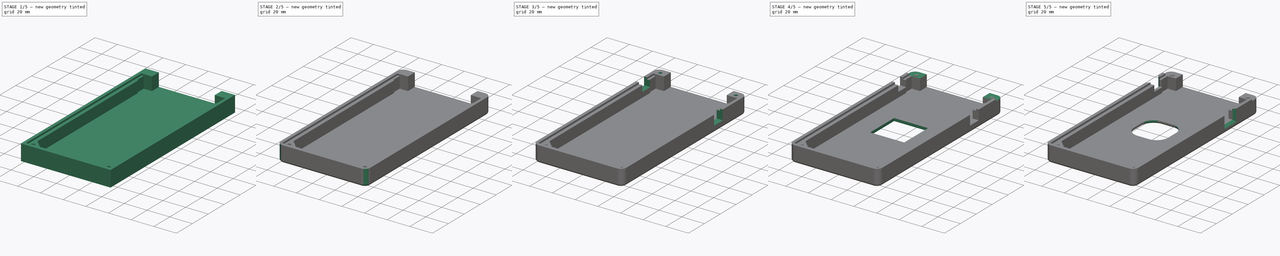
[diagram: build sequence overview — one tinted view per stage of 5, left to right]
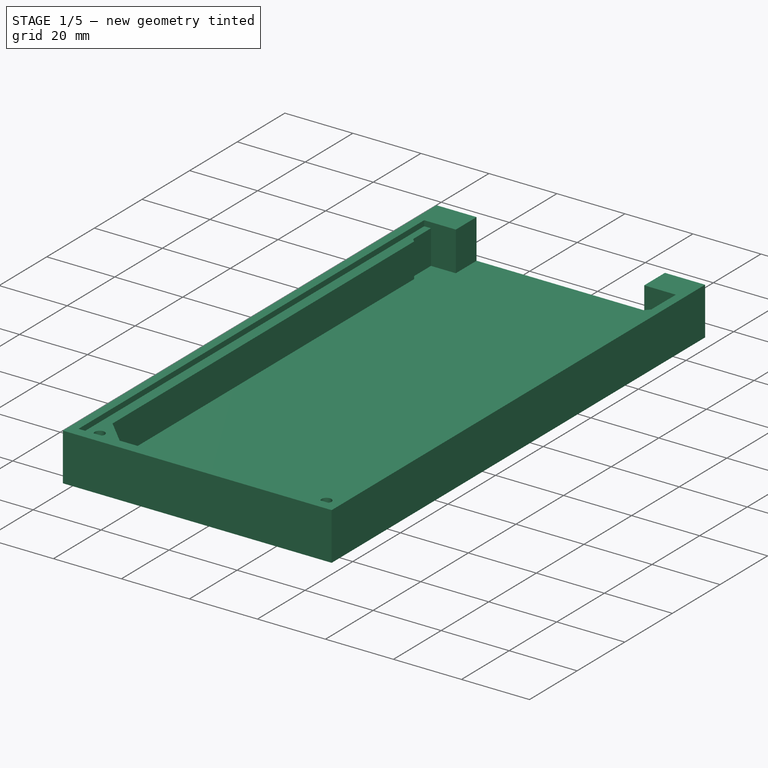
[diagram: stage 1 of 5 — iso view after this stage's code; geometry added in this stage tinted green]
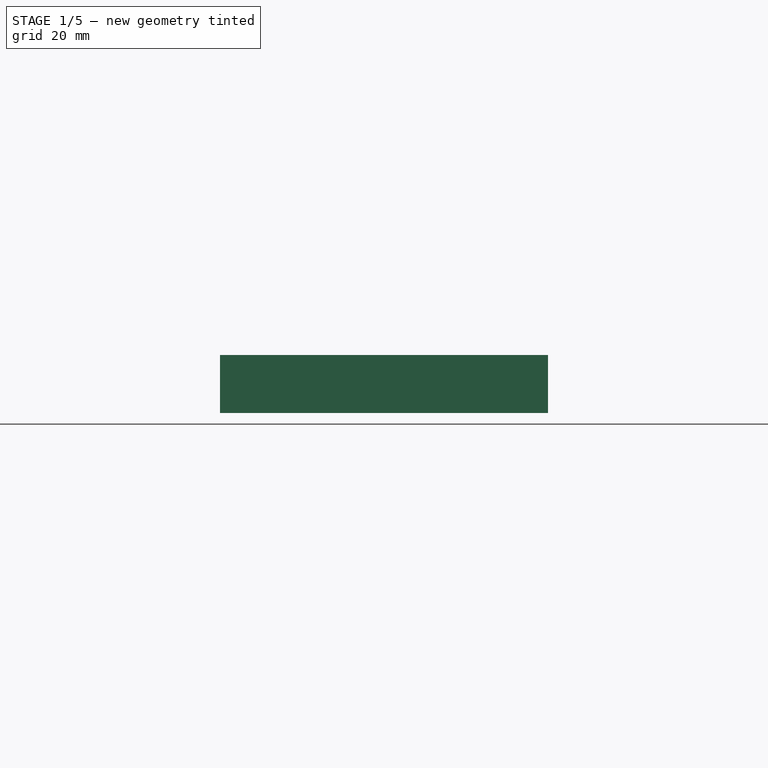
[diagram: stage 1 of 5 — front view after this stage's code; geometry added in this stage tinted green]
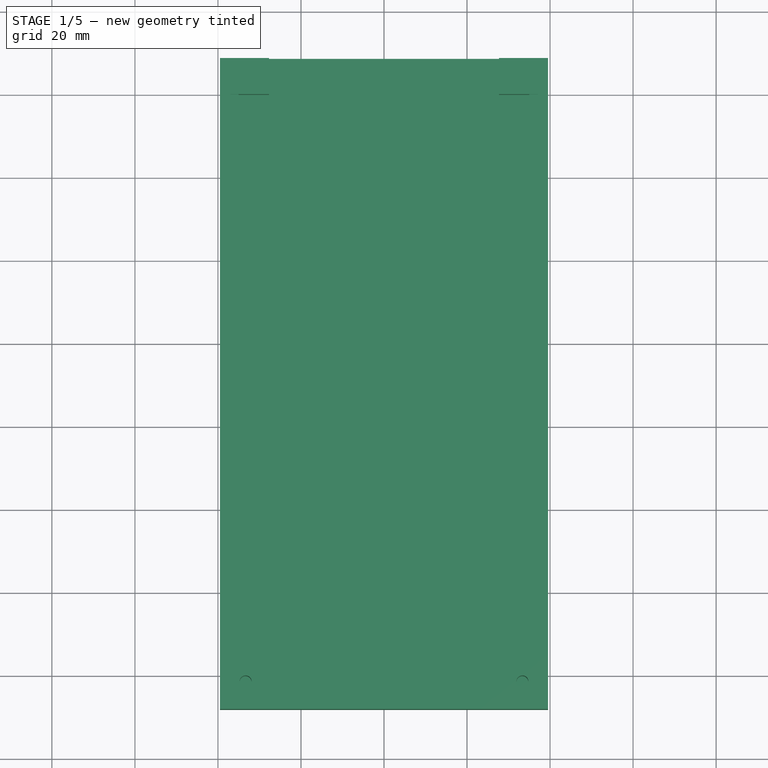
[diagram: stage 1 of 5 — top view after this stage's code; geometry added in this stage tinted green]
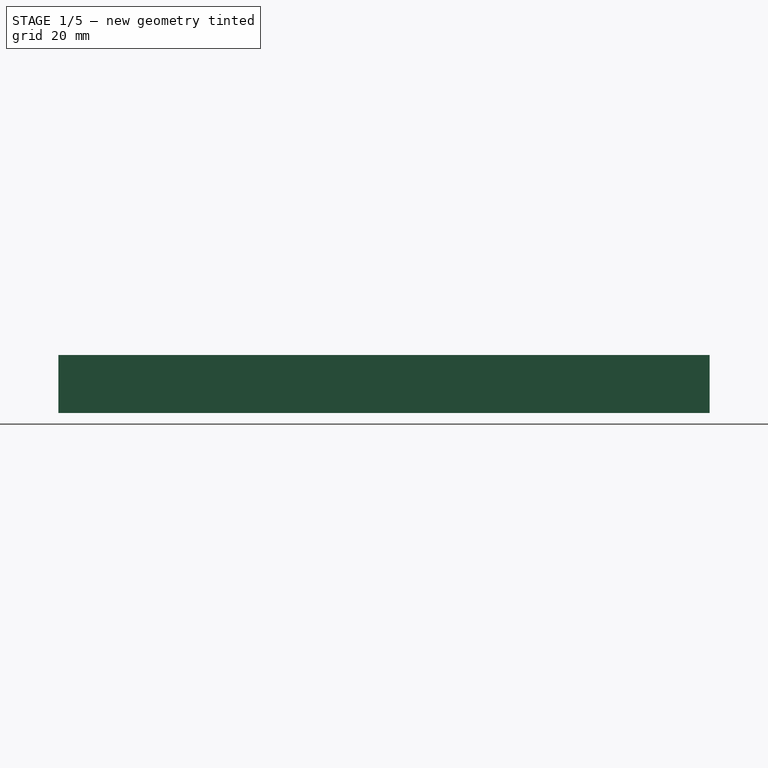
[diagram: stage 1 of 5 — right view after this stage's code; geometry added in this stage tinted green]
FCSTD DOCUMENT  (FreeCAD 0.19R)
Label: pocket265-dev2
License: All rights reserved
LicenseURL: http://en.wikipedia.org/wiki/All_rights_reserved
objects: Sketcher::SketchObject×9, PartDesign::Pocket×7, PartDesign::Chamfer×6, PartDesign::Fillet×3, PartDesign::Pad×2, PartDesign::Body×1
note: 46 computed .brp shape members not serialized (recipe doc carries the construction recipe); baked Part::Feature solids carry a one-line shape summary decoded from their .brp

FEATURE [Sketcher::SketchObject] Sketch
  FullyConstrained = true
  MapMode = 5
  Support = -> [XY_Plane]
  sketch-geometry (4):
    g0: LineSegment StartX=-39.515 StartY=8.7 StartZ=0 EndX=39.515 EndY=8.7 EndZ=0
    g1: LineSegment StartX=39.515 StartY=8.7 StartZ=0 EndX=39.515 EndY=-148.15 EndZ=0
    g2: LineSegment StartX=39.515 StartY=-148.15 StartZ=0 EndX=-39.515 EndY=-148.15 EndZ=0
    g3: LineSegment StartX=-39.515 StartY=-148.15 StartZ=0 EndX=-39.515 EndY=8.7 EndZ=0
  constraints (11):
    c: Coincident(g0,g1)
    c: Coincident(g1,g2)
    c: Coincident(g2,g3)
    c: Coincident(g3,g0)
    c: Horizontal(g2)
    c: Vertical(g1)
    c: Vertical(g3)
    c: Symmetric(g0,g0,g-2)
    c: DistanceX(g0,g0) = 79.03
    c: DistanceY(g-1,g0) = 8.7
    c: DistanceY(g1,g-1) = 148.15
FEATURE [PartDesign::Pad] Pad
  Direction = (1,1,1)
  Length = 14
  Length2 = 100
  Profile = -> Sketch
  Type = 0
FEATURE [Sketcher::SketchObject] Sketch001
  ExternalGeometry = -> [Pad]
  FullyConstrained = true
  MapMode = 5
  Placement = pos=(0,0,14) rot=(0,0,1;0rad)
  Support = -> [Pad]
  sketch-geometry (8):
    g0: LineSegment StartX=-37.015 StartY=-145.15 StartZ=0 EndX=37.015 EndY=-145.15 EndZ=0
    g1: LineSegment StartX=37.015 StartY=-145.15 StartZ=0 EndX=37.015 EndY=0 EndZ=0
    g2: LineSegment StartX=-37.015 StartY=0 StartZ=0 EndX=-37.015 EndY=-145.15 EndZ=0
    g3: LineSegment StartX=-37.015 StartY=0 StartZ=0 EndX=-27.7 EndY=0 EndZ=0
    g4: LineSegment StartX=-27.7 StartY=0 StartZ=0 EndX=-27.7 EndY=8.7 EndZ=0
    g5: LineSegment StartX=-27.7 StartY=8.7 StartZ=0 EndX=27.7 EndY=8.7 EndZ=0
    g6: LineSegment StartX=27.7 StartY=8.7 StartZ=0 EndX=27.7 EndY=0 EndZ=0
    g7: LineSegment StartX=27.7 StartY=0 StartZ=0 EndX=37.015 EndY=0 EndZ=0
  constraints (22):
    c: Coincident(g0,g1)
    c: Coincident(g2,g0)
    c: Vertical(g1)
    c: Vertical(g2)
    c: PointOnObject(g2,g-1)
    c: PointOnObject(g1,g-1)
    c: Symmetric(g0,g0,g-2)
    c: DistanceX(g0,g0) = 74.03
    c: DistanceY(g1,g1) = 145.15
    c: Coincident(g2,g3)
    c: PointOnObject(g3,g-1)
    c: Coincident(g3,g4)
    c: PointOnObject(g4,g-3)
    c: Vertical(g4)
    c: Coincident(g4,g5)
    c: PointOnObject(g5,g-3)
    c: Coincident(g5,g6)
    c: Vertical(g6)
    c: Coincident(g6,g7)
    c: Coincident(g7,g1)
    c: Symmetric(g6,g3,g-2)
    c: DistanceX(g5,g5) = 55.4
FEATURE [PartDesign::Pocket] Pocket
  BaseFeature = -> Pad
  Length = 11.6
  Length2 = 100
  Profile = -> Sketch001
  Type = 0
FEATURE [Sketcher::SketchObject] Sketch002
  ExternalGeometry = -> [Pocket]
  FullyConstrained = true
  MapMode = 5
  Placement = pos=(0,0,2.4) rot=(0,0,1;0rad)
  Support = -> [Pocket]
  sketch-geometry (14):
    g0: LineSegment StartX=-35.015 StartY=0 StartZ=0 EndX=-35.015 EndY=-7.5 EndZ=0
    g1: LineSegment StartX=-35.015 StartY=-7.5 StartZ=0 EndX=-34.015 EndY=-8.5 EndZ=0
    g2: LineSegment StartX=-34.015 StartY=-8.5 StartZ=0 EndX=-34.015 EndY=-135.15 EndZ=0
    g3: LineSegment StartX=-34.015 StartY=-135.15 StartZ=0 EndX=-27.015 EndY=-142.15 EndZ=0
    g4: LineSegment StartX=-27.015 StartY=-142.15 StartZ=0 EndX=27.015 EndY=-142.15 EndZ=0
    g5: LineSegment StartX=27.015 StartY=-142.15 StartZ=0 EndX=34.015 EndY=-135.15 EndZ=0
    g6: LineSegment StartX=34.015 StartY=-135.15 StartZ=0 EndX=34.015 EndY=-8.5 EndZ=0
    g7: LineSegment StartX=34.015 StartY=-8.5 StartZ=0 EndX=35.015 EndY=-7.5 EndZ=0
    g8: LineSegment StartX=35.015 StartY=-7.5 StartZ=0 EndX=35.015 EndY=0 EndZ=0
    g9: LineSegment StartX=35.015 StartY=0 StartZ=0 EndX=37.015 EndY=0 EndZ=0
    g10: LineSegment StartX=37.015 StartY=0 StartZ=0 EndX=37.015 EndY=-145.15 EndZ=0
    g11: LineSegment StartX=37.015 StartY=-145.15 StartZ=0 EndX=-37.015 EndY=-145.15 EndZ=0
    g12: LineSegment StartX=-37.015 StartY=-145.15 StartZ=0 EndX=-37.015 EndY=0 EndZ=0
    g13: LineSegment StartX=-37.015 StartY=0 StartZ=0 EndX=-35.015 EndY=0 EndZ=0
  constraints (34):
    c: PointOnObject(g0,g-3)
    c: Vertical(g0)
    c: Coincident(g0,g1)
    c: Coincident(g1,g2)
    c: Vertical(g2)
    c: Coincident(g2,g3)
    c: Coincident(g3,g4)
    c: Coincident(g4,g5)
    c: Coincident(g5,g6)
    c: Vertical(g6)
    c: Coincident(g6,g7)
    c: Coincident(g7,g8)
    c: Coincident(g8,g9)
    c: Coincident(g9,g-5)
    c: Coincident(g9,g10)
    c: Coincident(g10,g-4)
    c: Coincident(g10,g11)
    c: Coincident(g11,g-4)
    c: Coincident(g11,g12)
    c: Coincident(g12,g-3)
    c: Coincident(g12,g13)
    c: Coincident(g13,g0)
    c: Symmetric(g0,g8,g-2)
    c: DistanceX(g13,g13) = 2
    c: Symmetric(g6,g1,g-2)
    c: Symmetric(g7,g0,g-2)
    c: DistanceY(g0,g0) = 7.5
    c: Angle(g1,g0) = 2.35619
    c: DistanceX(g12,g1) = 3
    c: DistanceY(g11,g3) = 3
    c: Symmetric(g3,g4,g-2)
    c: Angle(g5,g4) = 2.35619
    c: DistanceX(g11,g3) = 10
    c: Equal(g3,g5)
FEATURE [PartDesign::Pad] Pad001
  BaseFeature = -> Pocket
  Direction = (1,1,1)
  Length = 10
  Length2 = 100
  Profile = -> Sketch002
  Type = 0
FEATURE [Sketcher::SketchObject] Sketch003
  FullyConstrained = true
  MapMode = 5
  Placement = pos=(0,0,12.4) rot=(0,0,1;0rad)
  Support = -> [Pad001]
  sketch-geometry (2):
    g0: Circle CenterX=-33.34 CenterY=-141.47 CenterZ=0 NormalX=0 NormalY=0 NormalZ=1 AngleXU=0 Radius=1.45
    g1: Circle CenterX=33.34 CenterY=-141.47 CenterZ=0 NormalX=0 NormalY=0 NormalZ=1 AngleXU=0 Radius=1.45
  constraints (5):
    c: Symmetric(g1,g0,g-2)
    c: Equal(g1,g0)
    c: Radius(g1) = 1.45
    c: DistanceX(g0,g1) = 66.68
    c: DistanceY(g0,g-1) = 141.47
FEATURE [PartDesign::Pocket] Pocket001
  BaseFeature = -> Pad001
  Length = 12
  Length2 = 100
  Profile = -> Sketch003
  Type = 0
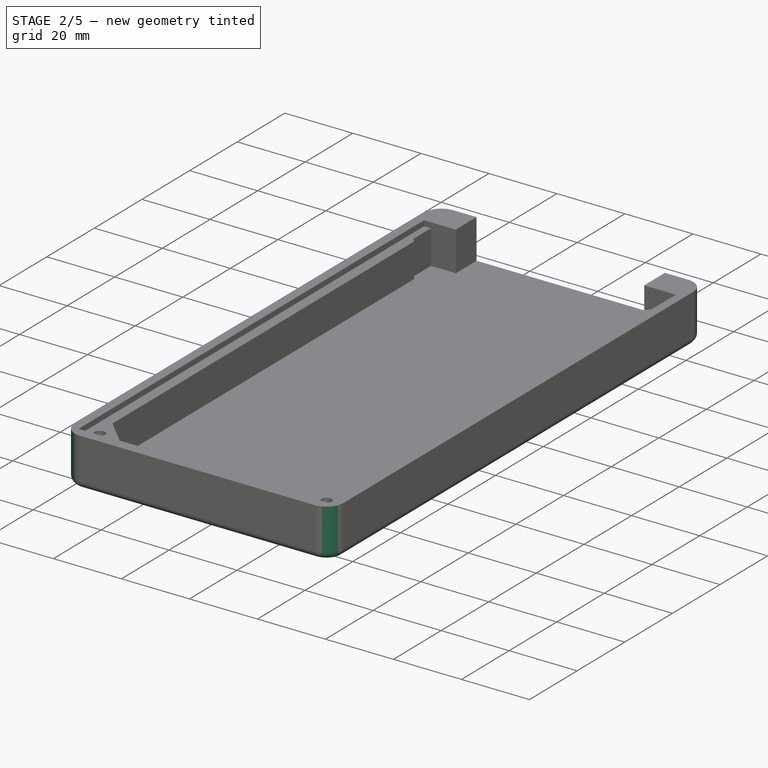
[diagram: stage 2 of 5 — iso view after this stage's code; geometry added in this stage tinted green]
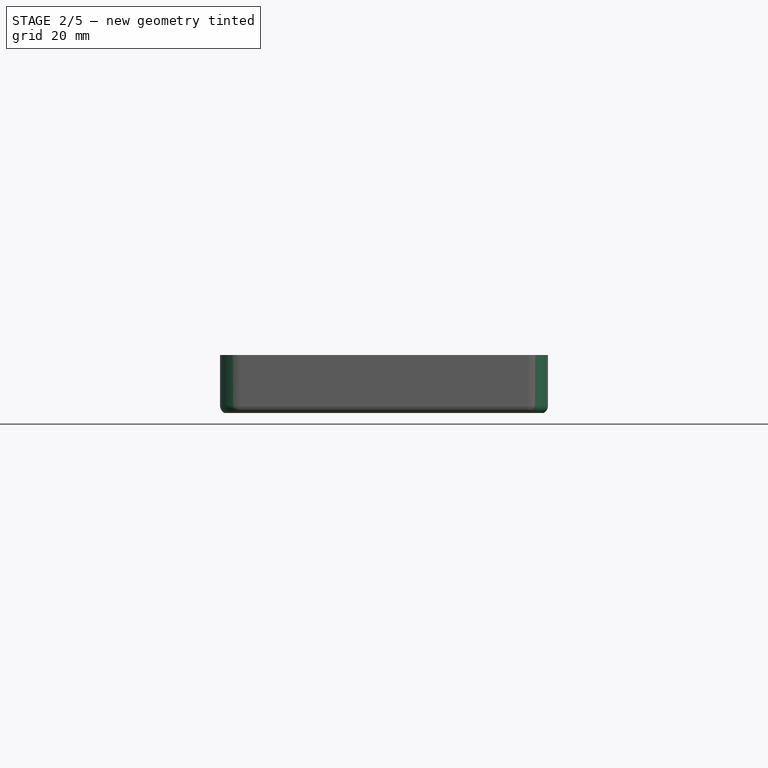
[diagram: stage 2 of 5 — front view after this stage's code; geometry added in this stage tinted green]
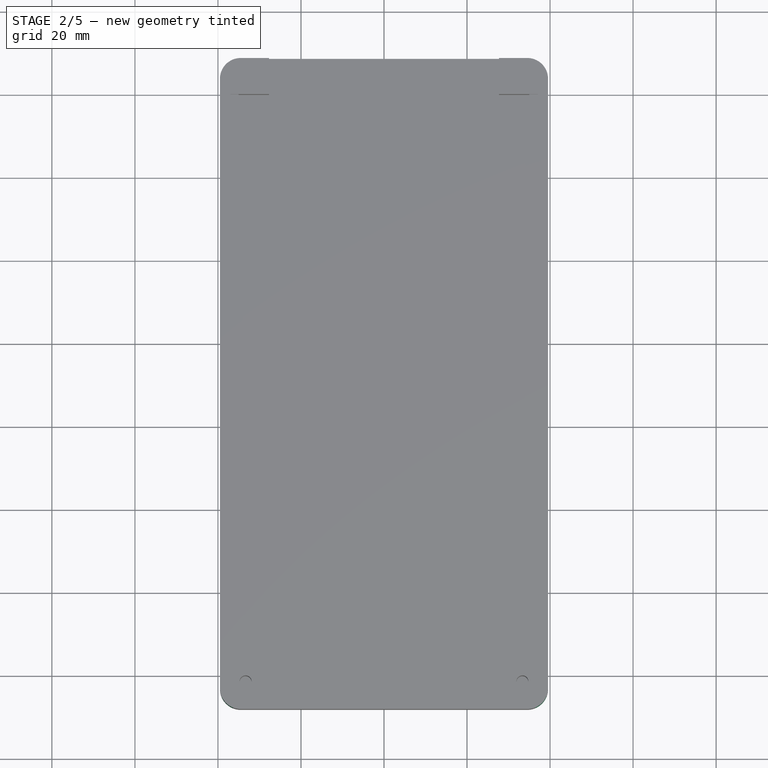
[diagram: stage 2 of 5 — top view after this stage's code; geometry added in this stage tinted green]
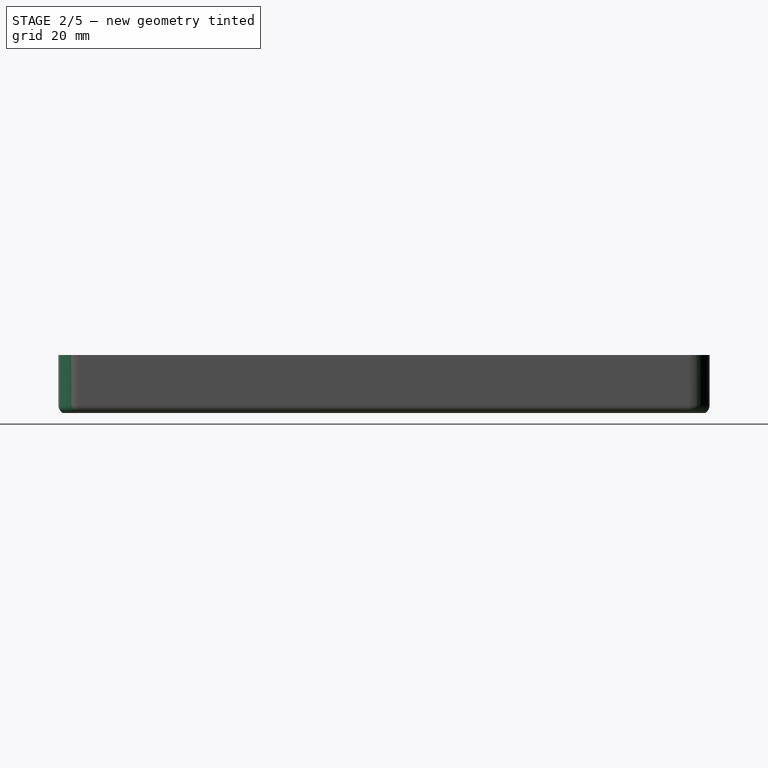
[diagram: stage 2 of 5 — right view after this stage's code; geometry added in this stage tinted green]
FEATURE [PartDesign::Fillet] Fillet
  Base = -> Pocket001 [Edge2,Edge12,Edge8,Edge38]
  BaseFeature = -> Pocket001
  Radius = 5
  SupportTransform = false
FEATURE [PartDesign::Chamfer] Chamfer
  Angle = 45
  Base = -> Fillet [Edge9]
  BaseFeature = -> Fillet
  ChamferType = 0
  FlipDirection = false
  Size = 1
  Size2 = 1
  SupportTransform = false
FEATURE [PartDesign::Fillet] Fillet001
  Base = -> Chamfer [Edge9]
  BaseFeature = -> Chamfer
  Radius = 2
  SupportTransform = false
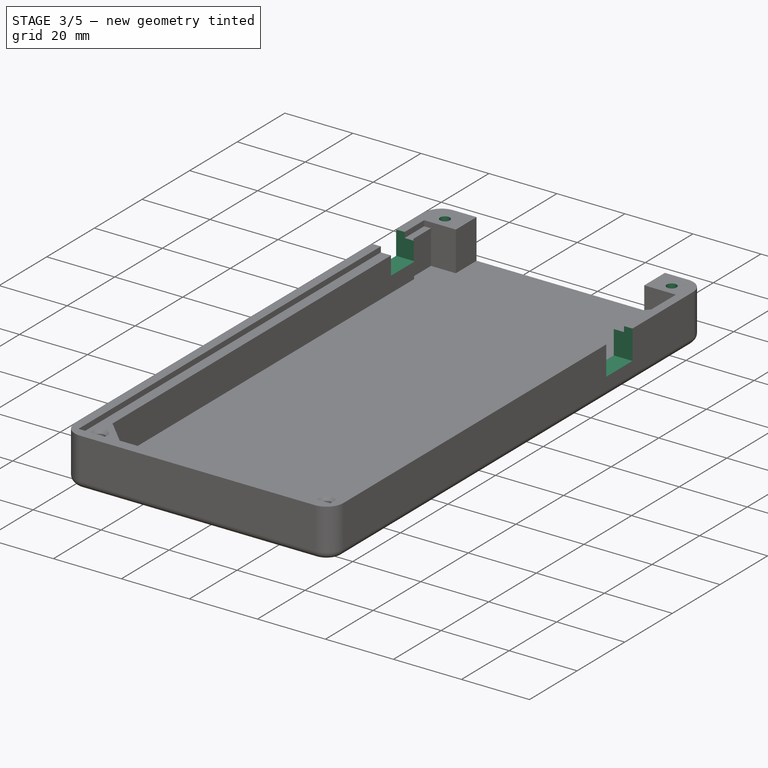
[diagram: stage 3 of 5 — iso view after this stage's code; geometry added in this stage tinted green]
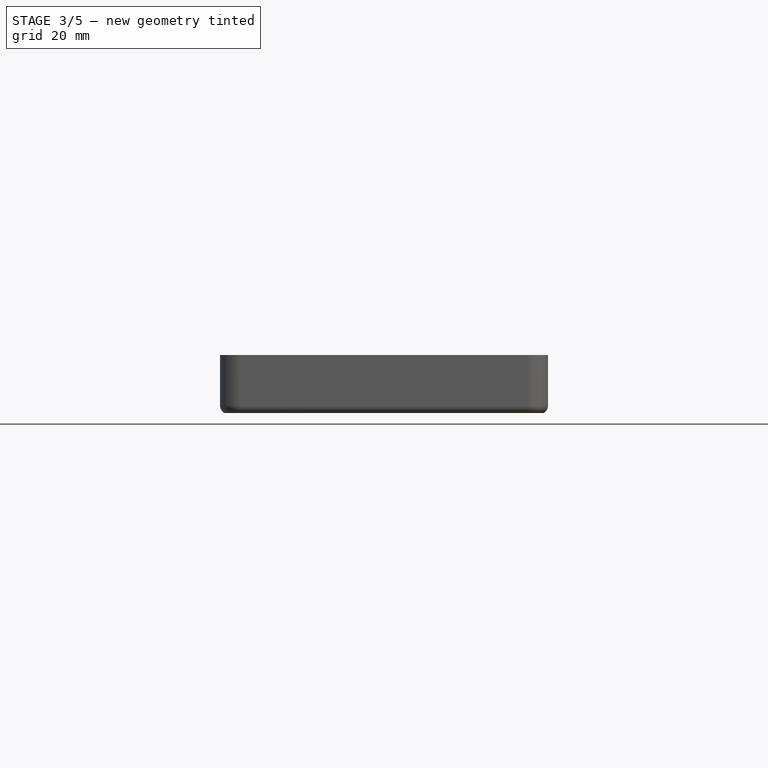
[diagram: stage 3 of 5 — front view after this stage's code; geometry added in this stage tinted green]
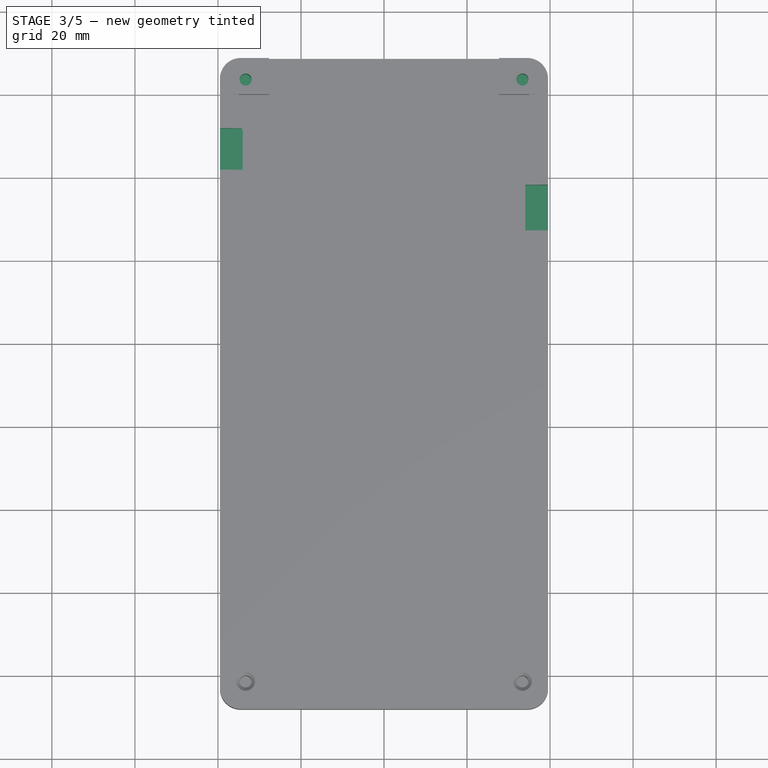
[diagram: stage 3 of 5 — top view after this stage's code; geometry added in this stage tinted green]
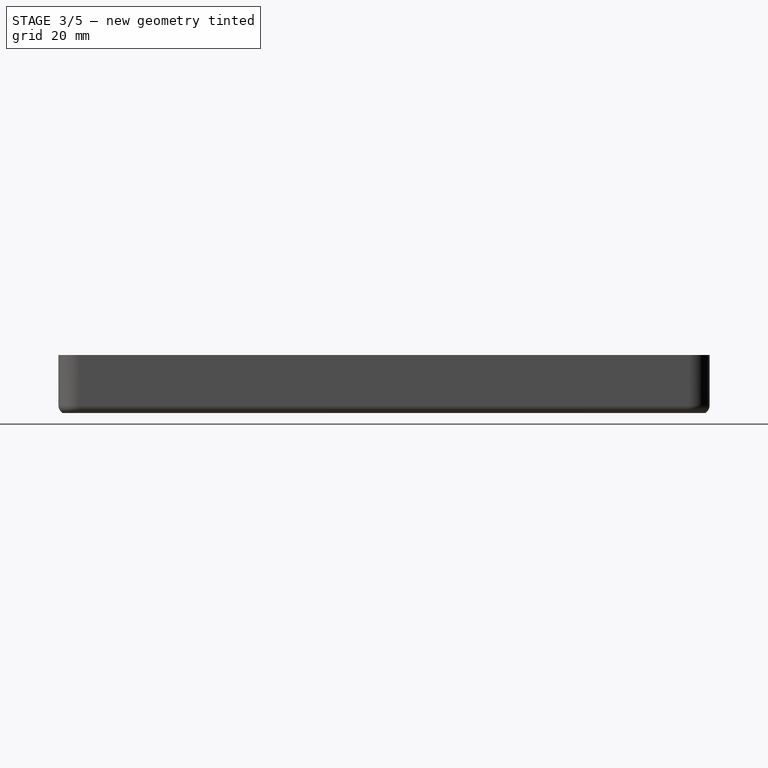
[diagram: stage 3 of 5 — right view after this stage's code; geometry added in this stage tinted green]
FEATURE [PartDesign::Chamfer] Chamfer001
  Angle = 45
  Base = -> Fillet001 [Edge108,Edge107]
  BaseFeature = -> Fillet001
  ChamferType = 0
  FlipDirection = false
  Size = 0.8
  Size2 = 1
  SupportTransform = false
FEATURE [Sketcher::SketchObject] Sketch004
  FullyConstrained = true
  MapMode = 5
  Placement = pos=(0,0,14) rot=(0,0,1;0rad)
  Support = -> [Chamfer001]
  sketch-geometry (4):
    g0: LineSegment StartX=31.16 StartY=-21.81 StartZ=0 EndX=43.81 EndY=-21.81 EndZ=0
    g1: LineSegment StartX=43.81 StartY=-21.81 StartZ=0 EndX=43.81 EndY=-32.81 EndZ=0
    g2: LineSegment StartX=43.81 StartY=-32.81 StartZ=0 EndX=31.16 EndY=-32.81 EndZ=0
    g3: LineSegment StartX=31.16 StartY=-32.81 StartZ=0 EndX=31.16 EndY=-21.81 EndZ=0
  constraints (12):
    c: Coincident(g0,g1)
    c: Coincident(g1,g2)
    c: Coincident(g2,g3)
    c: Coincident(g3,g0)
    c: Horizontal(g0)
    c: Horizontal(g2)
    c: Vertical(g1)
    c: Vertical(g3)
    c: DistanceY(g1,g1) = 11
    c: DistanceX(g-1,g0) = 31.16
    c: DistanceY(g0,g-1) = 21.81
    c: DistanceX(g0,g0) = 12.65
FEATURE [PartDesign::Pocket] Pocket002
  BaseFeature = -> Chamfer001
  Length = 8.6
  Length2 = 100
  Profile = -> Sketch004
  Type = 0
FEATURE [Sketcher::SketchObject] Sketch005
  FullyConstrained = true
  MapMode = 5
  Placement = pos=(0,0,14) rot=(0,0,1;0rad)
  Support = -> [Pocket002]
  sketch-geometry (4):
    g0: LineSegment StartX=-41.87 StartY=-8.2 StartZ=0 EndX=-30.79 EndY=-8.2 EndZ=0
    g1: LineSegment StartX=-30.79 StartY=-8.2 StartZ=0 EndX=-30.79 EndY=-18.2 EndZ=0
    g2: LineSegment StartX=-30.79 StartY=-18.2 StartZ=0 EndX=-41.87 EndY=-18.2 EndZ=0
    g3: LineSegment StartX=-41.87 StartY=-18.2 StartZ=0 EndX=-41.87 EndY=-8.2 EndZ=0
  constraints (12):
    c: Coincident(g0,g1)
    c: Coincident(g1,g2)
    c: Coincident(g2,g3)
    c: Coincident(g3,g0)
    c: Horizontal(g0)
    c: Horizontal(g2)
    c: Vertical(g1)
    c: Vertical(g3)
    c: DistanceX(g0,g0) = 11.08
    c: DistanceY(g1,g1) = 10
    c: DistanceX(g0,g-1) = 30.79
    c: DistanceY(g0,g-1) = 8.2
FEATURE [PartDesign::Pocket] Pocket003
  BaseFeature = -> Pocket002
  Length = 7
  Length2 = 100
  Profile = -> Sketch005
  Type = 0
FEATURE [Sketcher::SketchObject] Sketch006
  FullyConstrained = true
  MapMode = 5
  Placement = pos=(0,0,14) rot=(0,0,1;0rad)
  sketch-geometry (2):
    g0: Circle CenterX=-33.34 CenterY=3.5 CenterZ=0 NormalX=0 NormalY=0 NormalZ=1 AngleXU=0 Radius=1.45
    g1: Circle CenterX=33.34 CenterY=3.5 CenterZ=0 NormalX=0 NormalY=0 NormalZ=1 AngleXU=0 Radius=1.45
  constraints (5):
    c: Symmetric(g1,g0,g-2)
    c: DistanceX(g0,g1) = 66.68
    c: Equal(g1,g0)
    c: Radius(g1) = 1.45
    c: DistanceY(g-1,g0) = 3.5
FEATURE [PartDesign::Pocket] Pocket004
  BaseFeature = -> Pocket003
  Length = 12
  Length2 = 100
  Profile = -> Sketch006
  Type = 0
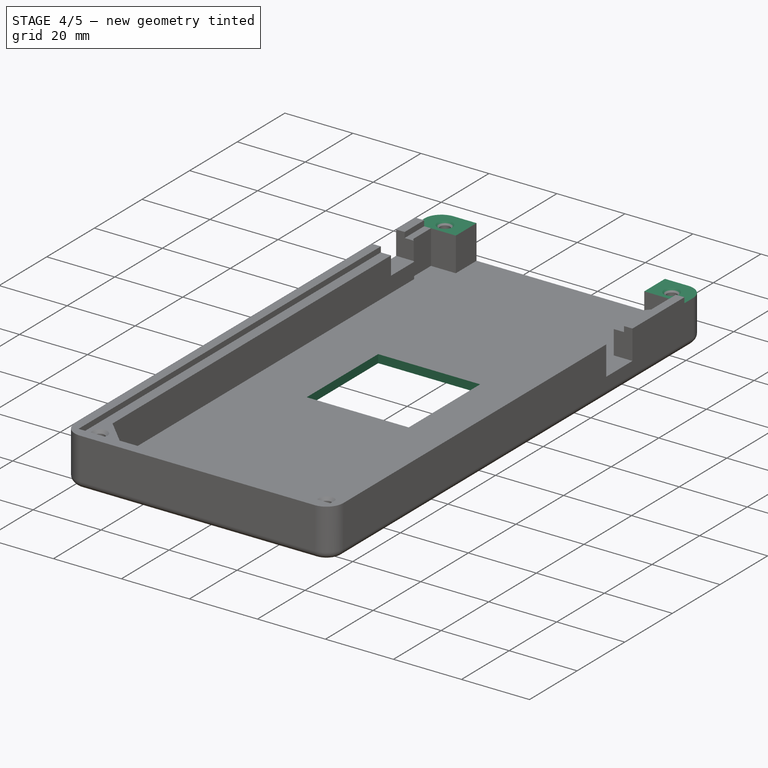
[diagram: stage 4 of 5 — iso view after this stage's code; geometry added in this stage tinted green]
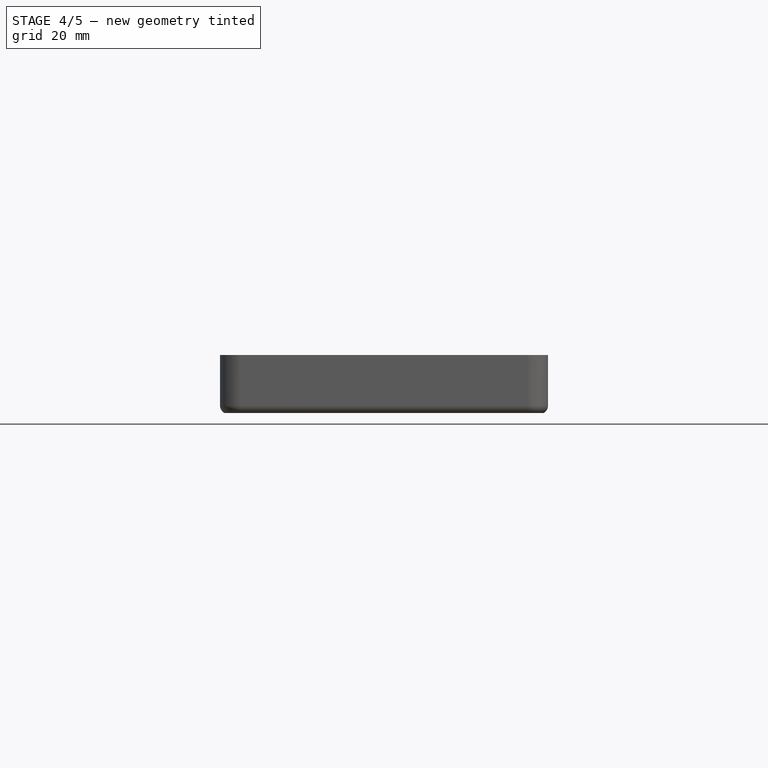
[diagram: stage 4 of 5 — front view after this stage's code; geometry added in this stage tinted green]
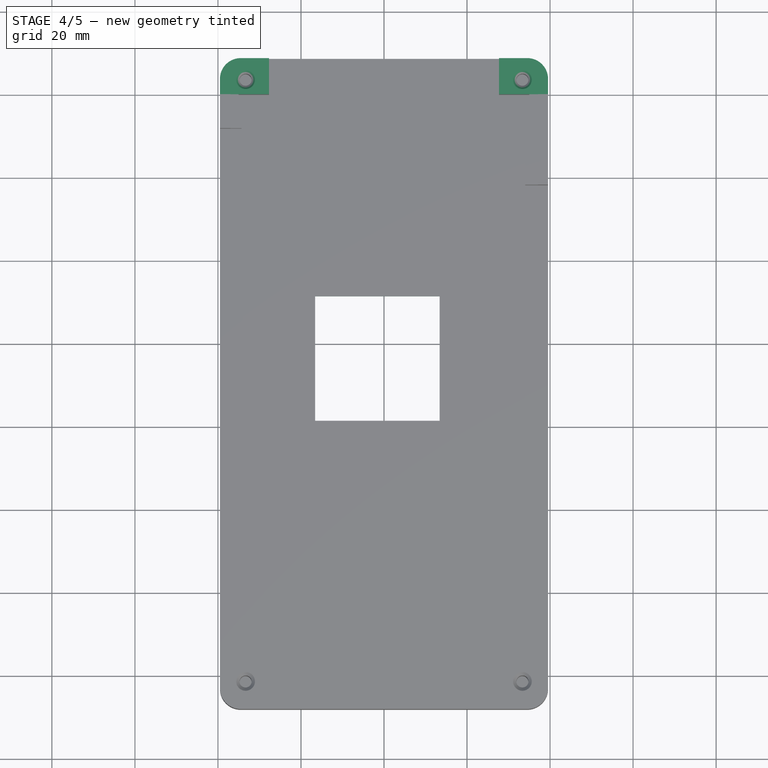
[diagram: stage 4 of 5 — top view after this stage's code; geometry added in this stage tinted green]
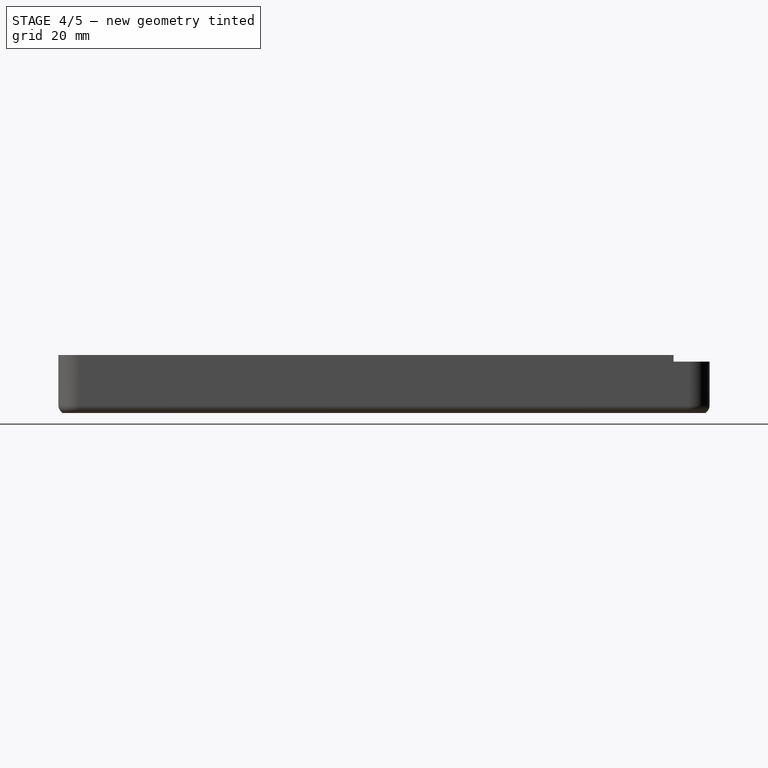
[diagram: stage 4 of 5 — right view after this stage's code; geometry added in this stage tinted green]
FEATURE [Sketcher::SketchObject] Sketch007
  FullyConstrained = true
  MapMode = 5
  Placement = pos=(0,0,14) rot=(0,0,1;0rad)
  Support = -> [Pocket004]
  sketch-geometry (4):
    g0: LineSegment StartX=-46.075 StartY=16.7 StartZ=0 EndX=46.075 EndY=16.7 EndZ=0
    g1: LineSegment StartX=46.075 StartY=16.7 StartZ=0 EndX=46.075 EndY=0 EndZ=0
    g2: LineSegment StartX=46.075 StartY=0 StartZ=0 EndX=-46.075 EndY=0 EndZ=0
    g3: LineSegment StartX=-46.075 StartY=0 StartZ=0 EndX=-46.075 EndY=16.7 EndZ=0
  constraints (11):
    c: Coincident(g0,g1)
    c: Coincident(g1,g2)
    c: Coincident(g2,g3)
    c: Coincident(g3,g0)
    c: Horizontal(g2)
    c: Vertical(g1)
    c: Vertical(g3)
    c: PointOnObject(g1,g-1)
    c: DistanceY(g1,g1) = 16.7
    c: Symmetric(g0,g0,g-2)
    c: DistanceX(g0,g0) = 92.15
FEATURE [PartDesign::Pocket] Pocket005
  BaseFeature = -> Pocket004
  Length = 1.6
  Length2 = 100
  Profile = -> Sketch007
  Type = 0
FEATURE [PartDesign::Chamfer] Chamfer002
  Angle = 45
  Base = -> Pocket005 [Edge112,Edge25]
  BaseFeature = -> Pocket005
  ChamferType = 0
  FlipDirection = false
  Size = 0.8
  Size2 = 1
  SupportTransform = false
FEATURE [Sketcher::SketchObject] Sketch008
  FullyConstrained = true
  MapMode = 5
  Placement = pos=(0,0,2.4) rot=(0,0,1;0rad)
  Support = -> [Chamfer002]
  sketch-geometry (4):
    g0: LineSegment StartX=-16.59 StartY=-48.5 StartZ=0 EndX=13.41 EndY=-48.5 EndZ=0
    g1: LineSegment StartX=13.41 StartY=-48.5 StartZ=0 EndX=13.41 EndY=-78.5 EndZ=0
    g2: LineSegment StartX=13.41 StartY=-78.5 StartZ=0 EndX=-16.59 EndY=-78.5 EndZ=0
    g3: LineSegment StartX=-16.59 StartY=-78.5 StartZ=0 EndX=-16.59 EndY=-48.5 EndZ=0
  constraints (12):
    c: Coincident(g0,g1)
    c: Coincident(g1,g2)
    c: Coincident(g2,g3)
    c: Coincident(g3,g0)
    c: Horizontal(g0)
    c: Horizontal(g2)
    c: Vertical(g1)
    c: Vertical(g3)
    c: Equal(g1,g0)
    c: DistanceY(g1,g1) = 30
    c: DistanceX(g-1,g0) = 13.41
    c: DistanceY(g0,g-1) = 48.5
FEATURE [PartDesign::Pocket] Pocket006
  BaseFeature = -> Chamfer002
  Length = 5
  Length2 = 100
  Profile = -> Sketch008
  Type = 1
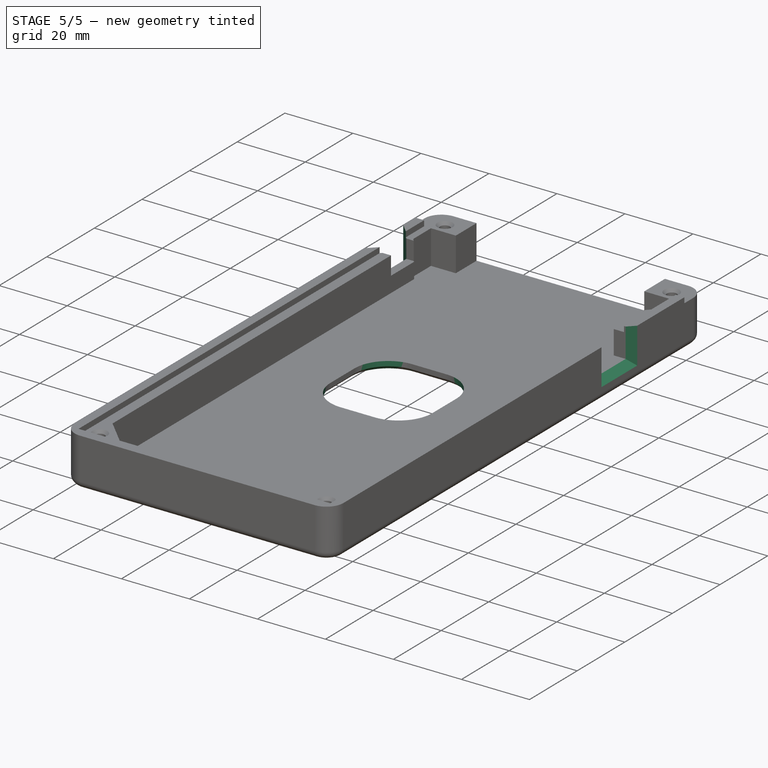
[diagram: stage 5 of 5 — iso view after this stage's code; geometry added in this stage tinted green]
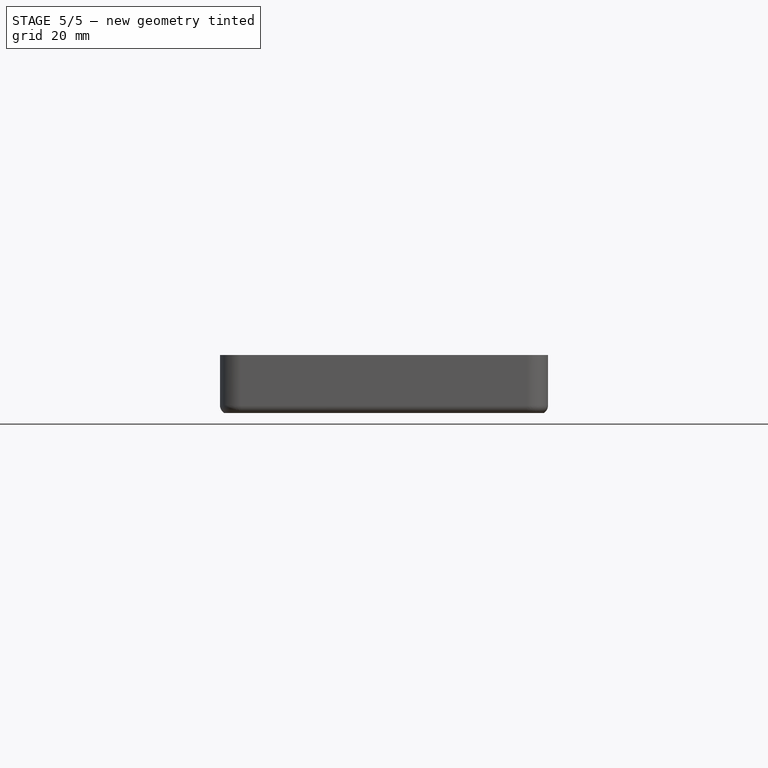
[diagram: stage 5 of 5 — front view after this stage's code; geometry added in this stage tinted green]
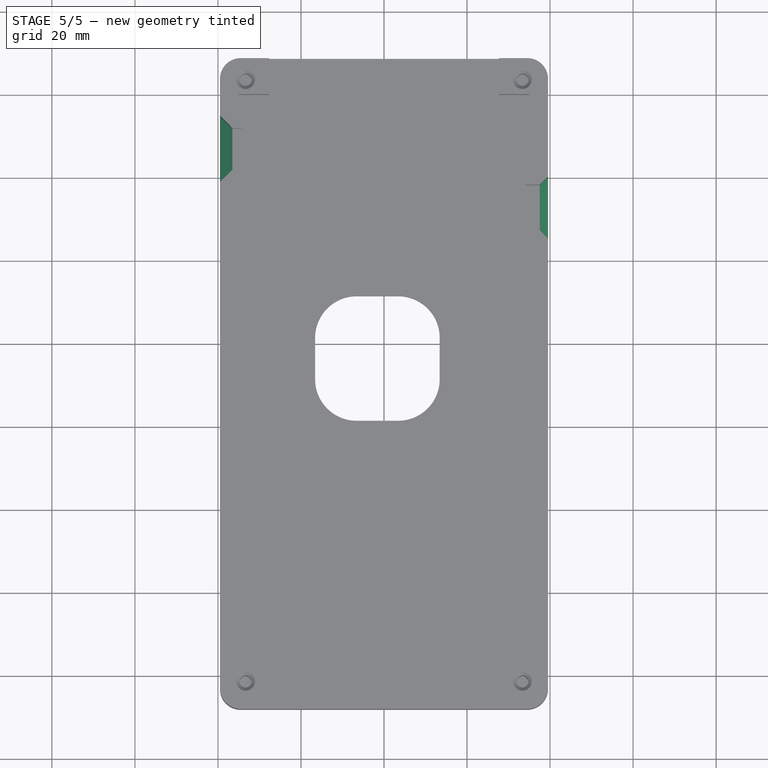
[diagram: stage 5 of 5 — top view after this stage's code; geometry added in this stage tinted green]
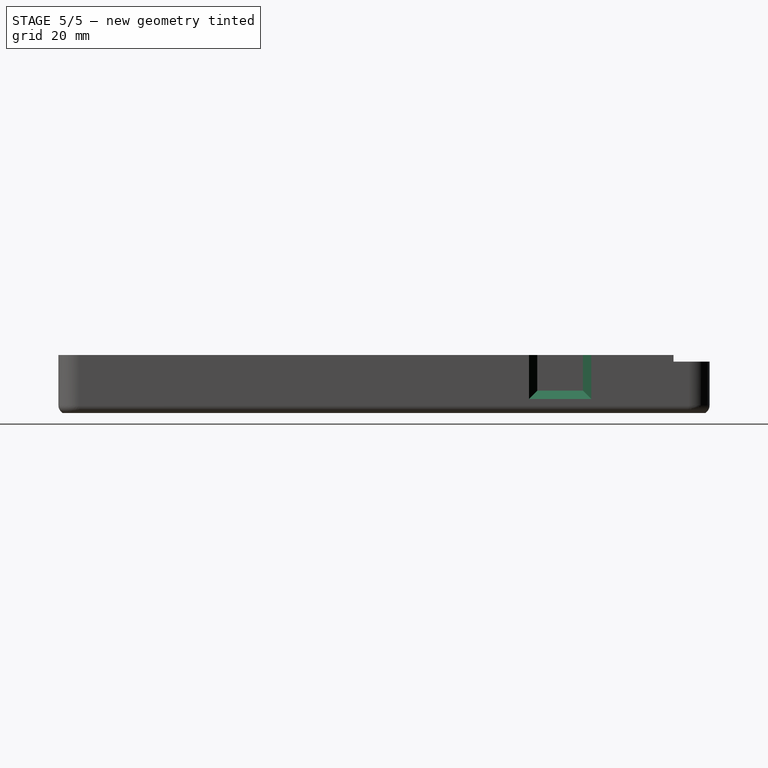
[diagram: stage 5 of 5 — right view after this stage's code; geometry added in this stage tinted green]
FEATURE [PartDesign::Fillet] Fillet002
  Base = -> Pocket006 [Edge114,Edge120,Edge118,Edge116]
  BaseFeature = -> Pocket006
  Radius = 10
  SupportTransform = false
FEATURE [PartDesign::Chamfer] Chamfer003
  Angle = 45
  Base = -> Fillet002 [Edge27]
  BaseFeature = -> Fillet002
  ChamferType = 0
  FlipDirection = false
  Size = 1
  Size2 = 1
  SupportTransform = false
FEATURE [PartDesign::Chamfer] Chamfer004
  Angle = 45
  Base = -> Chamfer003 [Edge151,Edge126,Edge131]
  BaseFeature = -> Chamfer003
  ChamferType = 0
  FlipDirection = false
  Size = 3
  Size2 = 1
  SupportTransform = false
FEATURE [PartDesign::Chamfer] Chamfer005
  Angle = 45
  Base = -> Chamfer004 [Edge151,Edge155,Edge156]
  BaseFeature = -> Chamfer004
  ChamferType = 0
  FlipDirection = false
  Size = 2
  Size2 = 1
  SupportTransform = false
FEATURE [PartDesign::Body] Body
  Group = -> [Sketch,Pad,Sketch001,Pocket,Sketch002,Pad001,Sketch003,Pocket001,Fillet,Chamfer,Fillet001,Chamfer001,Sketch004,Pocket002,Sketch005,Pocket003,Sketch006,Pocket004,Sketch007,Pocket005,Chamfer002,Sketch008,Pocket006,Fillet002,Chamfer003,Chamfer004,Chamfer005]
  Origin = -> Origin
  Tip = -> Chamfer005
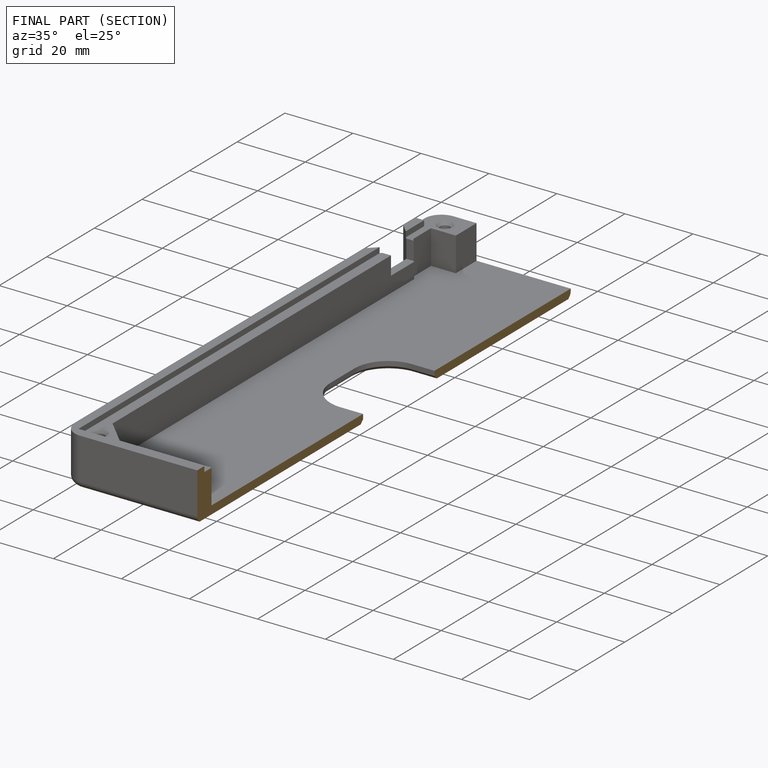
[diagram: finished part — half-section view (interior)]
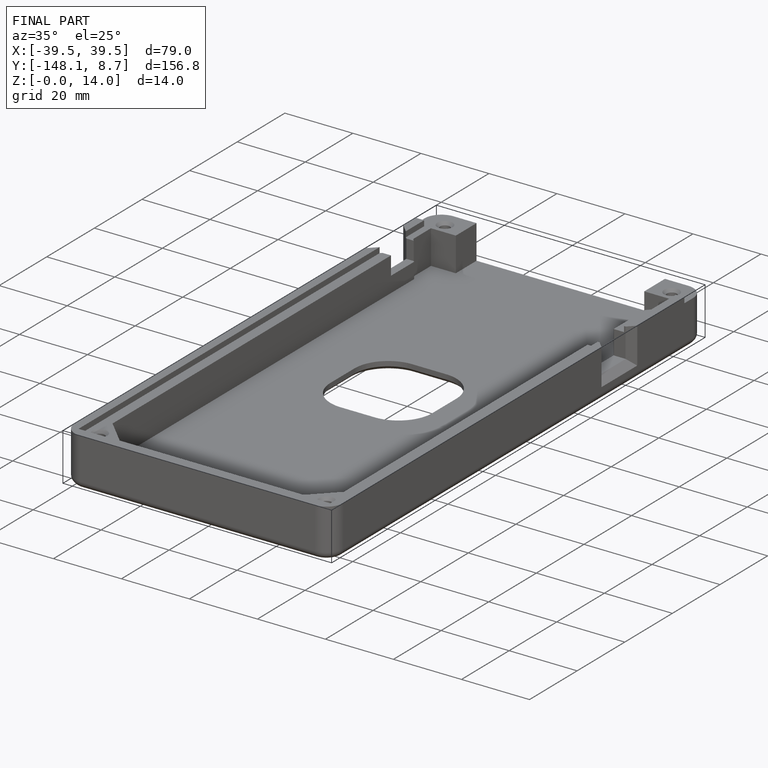
[diagram: finished part — iso view with bounding-box wireframe]
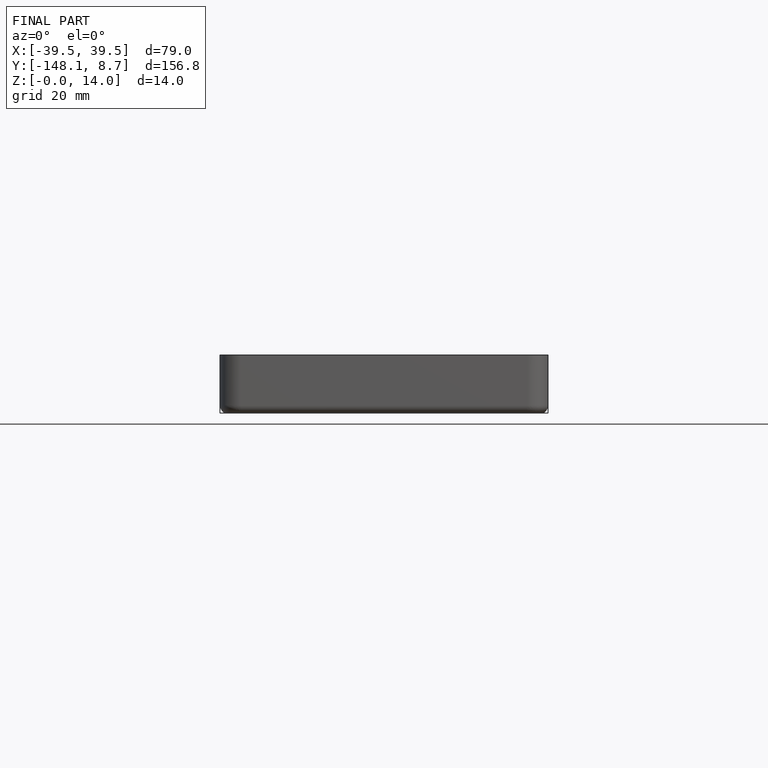
[diagram: finished part — front view with bounding-box wireframe]
